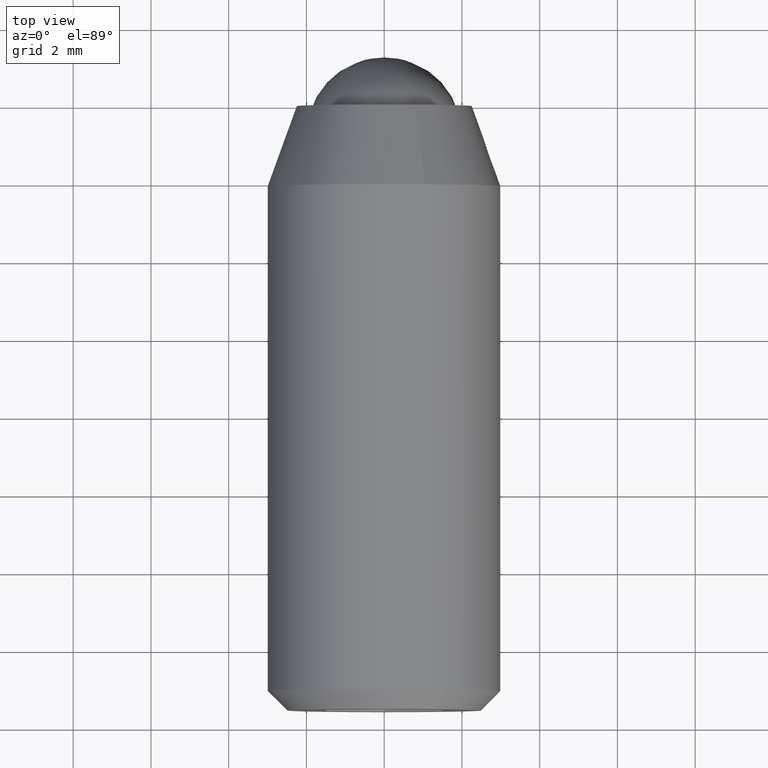
[diagram: clean part render]
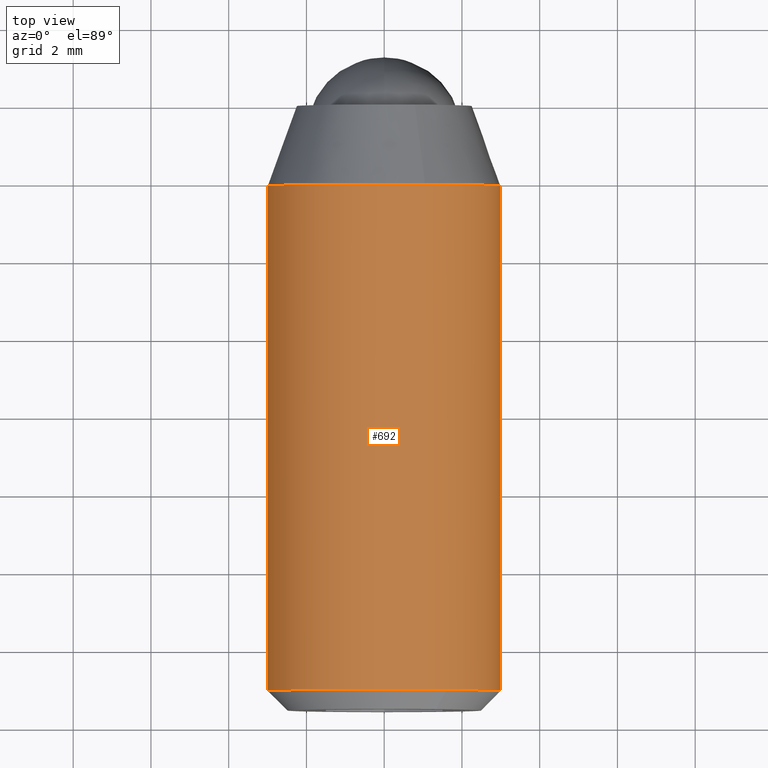
[diagram: same view with one face highlighted and labeled with its STEP entity id]
A machine part, top view. The second image highlights one B-rep face of the part: STEP entity #692.
In plain terms, the highlighted face is a freeform B-spline surface patch.
Its self-contained STEP definition (entity closure, byte-faithful):
#256=CARTESIAN_POINT('',(2.979028827039997,-15.050000000000001,-0.354100617989129));
#257=VERTEX_POINT('',#256);
#258=CARTESIAN_POINT('',(1.613552380348581,-15.049999999999390,2.529120146587553));
#259=VERTEX_POINT('',#258);
#260=CARTESIAN_POINT('',(2.979028827039997,-15.050000000000002,-0.354100617989129));
#261=CARTESIAN_POINT('',(3.000000000000000,-15.049999999999997,-0.177671304938903));
#262=CARTESIAN_POINT('',(3.0,-15.050000000000001,-6.765950E-016));
#263=CARTESIAN_POINT('',(3.000000000000000,-15.050000000000006,1.644580968029252));
#264=CARTESIAN_POINT('',(1.613552380348581,-15.049999999999393,2.529120146587553));
#272=(BOUNDED_CURVE()B_SPLINE_CURVE(2,(#260,#261,#262,#263,#264),.UNSPECIFIED.,.F.,.U.)B_SPLINE_CURVE_WITH_KNOTS((3,2,3),(0.229562591855431,0.250000000000000,0.407950112626405),.UNSPECIFIED.)CURVE()GEOMETRIC_REPRESENTATION_ITEM()RATIONAL_B_SPLINE_CURVE((0.956026986138842,0.976056086977332,1.0,0.814949932403620,0.863729296954216))REPRESENTATION_ITEM(''));
#273=EDGE_CURVE('',#257,#259,#272,.T.);
#316=CARTESIAN_POINT('',(-2.990751486467367,-15.050000547912260,0.235376844060400));
#317=VERTEX_POINT('',#316);
#323=CARTESIAN_POINT('',(-2.994404631648551,-15.049999999999990,0.183141753695629));
#324=VERTEX_POINT('',#323);
#325=CARTESIAN_POINT('',(-2.990751486467367,-15.050000547912251,0.235376844060400));
#326=CARTESIAN_POINT('',(-2.992806284083604,-15.049999999999999,0.209275058976257));
#327=CARTESIAN_POINT('',(-2.994404631648550,-15.049999999999997,0.183141753695629));
#335=(BOUNDED_CURVE()B_SPLINE_CURVE(2,(#325,#326,#327),.UNSPECIFIED.,.F.,.U.)B_SPLINE_CURVE_WITH_KNOTS((3,3),(0.736331346502731,0.739333184949944),.UNSPECIFIED.)CURVE()GEOMETRIC_REPRESENTATION_ITEM()RATIONAL_B_SPLINE_CURVE((0.969723451898952,0.972855757106757,0.976072518979253))REPRESENTATION_ITEM(''));
#336=EDGE_CURVE('',#317,#324,#335,.T.);
#389=CARTESIAN_POINT('',(0.0,-15.050000000000001,2.999999999999999));
#390=VERTEX_POINT('',#389);
#391=CARTESIAN_POINT('',(1.613552380348582,-15.049999999999390,2.529120146587553));
#392=CARTESIAN_POINT('',(0.875484166150211,-15.050000000000001,3.000000000000000));
#393=CARTESIAN_POINT('',(0.0,-15.050000000000001,2.999999999999999));
#401=(BOUNDED_CURVE()B_SPLINE_CURVE(2,(#391,#392,#393),.UNSPECIFIED.,.F.,.U.)B_SPLINE_CURVE_WITH_KNOTS((3,3),(0.407950112626405,0.500000000000000),.UNSPECIFIED.)CURVE()GEOMETRIC_REPRESENTATION_ITEM()RATIONAL_B_SPLINE_CURVE((0.863729296954217,0.892156848782928,1.0))REPRESENTATION_ITEM(''));
#402=EDGE_CURVE('',#259,#390,#401,.T.);
#404=CARTESIAN_POINT('',(0.0,-15.050000000000001,2.999999999999999));
#405=CARTESIAN_POINT('',(-2.773172219317691,-15.049999999999995,2.999999999999999));
#406=CARTESIAN_POINT('',(-2.990751486467367,-15.050000547912258,0.235376844060400));
#414=(BOUNDED_CURVE()B_SPLINE_CURVE(2,(#404,#405,#406),.UNSPECIFIED.,.F.,.U.)B_SPLINE_CURVE_WITH_KNOTS((3,3),(0.500000000000000,0.736331346502732),.UNSPECIFIED.)CURVE()GEOMETRIC_REPRESENTATION_ITEM()RATIONAL_B_SPLINE_CURVE((1.0,0.723120604865190,0.969723451898952))REPRESENTATION_ITEM(''));
#415=EDGE_CURVE('',#390,#317,#414,.T.);
#468=CARTESIAN_POINT('',(1.054853923181420,-2.060608000001297,2.808430736327957));
#469=VERTEX_POINT('',#468);
#470=CARTESIAN_POINT('',(0.0,-2.060608000000000,2.999999999999999));
#471=VERTEX_POINT('',#470);
#472=CARTESIAN_POINT('',(1.054853923181420,-2.060608000001297,2.808430736327958));
#473=CARTESIAN_POINT('',(0.544822158207495,-2.060608000000000,2.999999999999999));
#474=CARTESIAN_POINT('',(0.0,-2.060608000000000,2.999999999999999));
#482=(BOUNDED_CURVE()B_SPLINE_CURVE(2,(#472,#473,#474),.UNSPECIFIED.,.F.,.U.)B_SPLINE_CURVE_WITH_KNOTS((3,3),(0.440284170898174,0.500000000000000),.UNSPECIFIED.)CURVE()GEOMETRIC_REPRESENTATION_ITEM()RATIONAL_B_SPLINE_CURVE((0.893499554634866,0.930038554401009,1.0))REPRESENTATION_ITEM(''));
#483=EDGE_CURVE('',#469,#471,#482,.T.);
#522=CARTESIAN_POINT('',(-2.994404511037095,-2.060607997349454,0.183143709914920));
#523=VERTEX_POINT('',#522);
#529=CARTESIAN_POINT('',(0.0,-2.060608000000000,2.999999999999999));
#530=CARTESIAN_POINT('',(-2.822120002894594,-2.060607999999999,2.999999999999998));
#531=CARTESIAN_POINT('',(-2.994404511037095,-2.060607997349454,0.183143709914921));
#539=(BOUNDED_CURVE()B_SPLINE_CURVE(2,(#529,#530,#531),.UNSPECIFIED.,.F.,.U.)B_SPLINE_CURVE_WITH_KNOTS((3,3),(0.500000000000000,0.739333072223147),.UNSPECIFIED.)CURVE()GEOMETRIC_REPRESENTATION_ITEM()RATIONAL_B_SPLINE_CURVE((1.0,0.719603864432200,0.976072277383916))REPRESENTATION_ITEM(''));
#540=EDGE_CURVE('',#471,#523,#539,.T.);
#567=CARTESIAN_POINT('',(2.979028823977284,-2.060608000000000,-0.354100643755718));
#568=VERTEX_POINT('',#567);
#569=CARTESIAN_POINT('',(2.979028823977285,-2.060608000000001,-0.354100643755718));
#570=CARTESIAN_POINT('',(3.000000000000000,-2.060608000000000,-0.177671317958396));
#571=CARTESIAN_POINT('',(3.0,-2.060608000000000,-6.765950E-016));
#572=CARTESIAN_POINT('',(3.0,-2.060608000000000,2.077828787072924));
#573=CARTESIAN_POINT('',(1.054853923181420,-2.060608000001297,2.808430736327958));
#581=(BOUNDED_CURVE()B_SPLINE_CURVE(2,(#569,#570,#571,#572,#573),.UNSPECIFIED.,.F.,.U.)B_SPLINE_CURVE_WITH_KNOTS((3,2,3),(0.229562590393667,0.250000000000000,0.440284170898174),.UNSPECIFIED.)CURVE()GEOMETRIC_REPRESENTATION_ITEM()RATIONAL_B_SPLINE_CURVE((0.956026983273721,0.976056085264769,1.0,0.777068226785539,0.893499554634866))REPRESENTATION_ITEM(''));
#582=EDGE_CURVE('',#568,#469,#581,.T.);
#651=CARTESIAN_POINT('',(2.979028579091000,-1.735873199999999,-0.354102703970276));
#652=CARTESIAN_POINT('',(2.989162846345817,-1.735873199999999,-0.268844185913934));
#653=CARTESIAN_POINT('',(2.994404395265600,-1.735873199999999,-0.183145618604572));
#654=CARTESIAN_POINT('',(3.177550013870171,-1.735873200000000,2.811258776661028));
#655=CARTESIAN_POINT('',(0.183145618604571,-1.735873199999999,2.994404395265599));
#656=CARTESIAN_POINT('',(-2.811258776661029,-1.735873200000000,3.177550013870171));
#657=CARTESIAN_POINT('',(-2.994404395265600,-1.735873199999999,0.183145618604570));
#658=CARTESIAN_POINT('',(2.979028579091000,-15.382853169999997,-0.354102703970276));
#659=CARTESIAN_POINT('',(2.989162846345817,-15.382853170000001,-0.268844185913934));
#660=CARTESIAN_POINT('',(2.994404395265600,-15.382853170000001,-0.183145618604572));
#661=CARTESIAN_POINT('',(3.177550013870171,-15.382853170000001,2.811258776661028));
#662=CARTESIAN_POINT('',(0.183145618604571,-15.382853170000001,2.994404395265599));
#663=CARTESIAN_POINT('',(-2.811258776661029,-15.382853170000001,3.177550013870171));
#664=CARTESIAN_POINT('',(-2.994404395265600,-15.382853170000001,0.183145618604570));
#672=(BOUNDED_SURFACE()B_SPLINE_SURFACE(2,1,((#651,#658),(#652,#659),(#653,#660),(#654,#661),(#655,#662),(#656,#663),(#657,#664)),.UNSPECIFIED.,.F.,.F.,.U.)B_SPLINE_SURFACE_WITH_KNOTS((3,2,2,3),(2,2),(0.0,0.198822509939086,5.169385258416225,10.139948006893370),(0.0,13.646979970000000),.UNSPECIFIED.)GEOMETRIC_REPRESENTATION_ITEM()RATIONAL_B_SPLINE_SURFACE(((0.977505800795127,0.977505800795127),(0.988284271247462,0.988284271247462),(1.0,1.0),(0.707106781186548,0.707106781186548),(1.0,1.0),(0.707106781186548,0.707106781186548),(1.0,1.0)))REPRESENTATION_ITEM('')SURFACE());
#673=ORIENTED_EDGE('',*,*,#273,.F.);
#674=CARTESIAN_POINT('',(2.979028823977284,-2.060608000000000,-0.354100643755718));
#675=CARTESIAN_POINT('',(2.979028827039997,-15.050000000000001,-0.354100617989129));
#676=QUASI_UNIFORM_CURVE('',1,(#674,#675),.UNSPECIFIED.,.F.,.U.);
#677=EDGE_CURVE('',#568,#257,#676,.T.);
#678=ORIENTED_EDGE('',*,*,#677,.F.);
#679=ORIENTED_EDGE('',*,*,#582,.T.);
#680=ORIENTED_EDGE('',*,*,#483,.T.);
#681=ORIENTED_EDGE('',*,*,#540,.T.);
#682=CARTESIAN_POINT('',(-2.994404511037095,-2.060607997349454,0.183143709914920));
#683=CARTESIAN_POINT('',(-2.994404631648551,-15.049999999999990,0.183141753695629));
#684=QUASI_UNIFORM_CURVE('',1,(#682,#683),.UNSPECIFIED.,.F.,.U.);
#685=EDGE_CURVE('',#523,#324,#684,.T.);
#686=ORIENTED_EDGE('',*,*,#685,.T.);
#687=ORIENTED_EDGE('',*,*,#336,.F.);
#688=ORIENTED_EDGE('',*,*,#415,.F.);
#689=ORIENTED_EDGE('',*,*,#402,.F.);
#690=EDGE_LOOP('',(#673,#678,#679,#680,#681,#686,#687,#688,#689));
#691=FACE_OUTER_BOUND('',#690,.T.);
#692=ADVANCED_FACE('',(#691),#672,.T.);